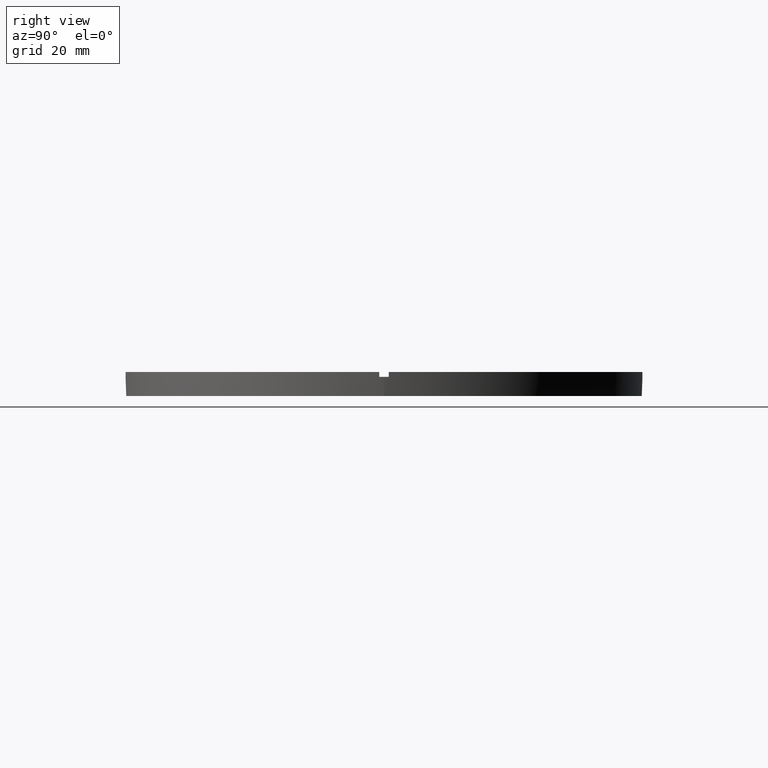
[diagram: clean part render]
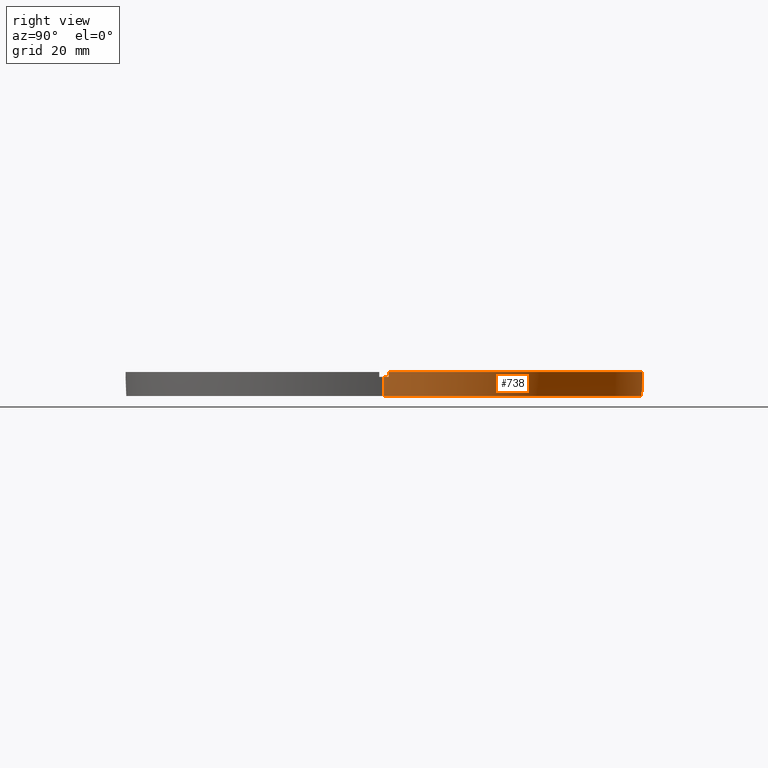
[diagram: same view with one face highlighted and labeled with its STEP entity id]
A machine part, right view. The second image highlights one B-rep face of the part: STEP entity #738.
In plain terms, the highlighted cylindrical surface (partial cylindrical patch) has radius 54 mm, axis along (-0, -0, -1).
Its self-contained STEP definition (entity closure, byte-faithful):
#6 = EDGE_CURVE ( 'NONE', #728, #217, #572, .T. ) ;
#8 = DIRECTION ( 'NONE',  ( 0.000000000000000000, -0.000000000000000000, 1.000000000000000000 ) ) ;
#10 = CARTESIAN_POINT ( 'NONE',  ( 53.99073994677235788, 0.9999999999998456790, 4.000000000000000000 ) ) ;
#14 = CARTESIAN_POINT ( 'NONE',  ( -1.000000000000027311, 53.99073994677235078, 5.000000000000000000 ) ) ;
#15 = CARTESIAN_POINT ( 'NONE',  ( 54.00000000000000000, 6.613092715395707467E-15, 4.000000000000000000 ) ) ;
#16 = EDGE_CURVE ( 'NONE', #146, #57, #47, .T. ) ;
#25 = EDGE_CURVE ( 'NONE', #301, #200, #280, .T. ) ;
#27 = VECTOR ( 'NONE', #434, 1000.000000000000000 ) ;
#39 = VECTOR ( 'NONE', #130, 1000.000000000000000 ) ;
#47 = CIRCLE ( 'NONE', #350, 54.00000000000000000 ) ;
#57 = VERTEX_POINT ( 'NONE', #207 ) ;
#58 = AXIS2_PLACEMENT_3D ( 'NONE', #514, #698, #463 ) ;
#62 = LINE ( 'NONE', #113, #555 ) ;
#73 = CIRCLE ( 'NONE', #58, 54.00000000000000000 ) ;
#77 = LINE ( 'NONE', #770, #609 ) ;
#90 = CIRCLE ( 'NONE', #712, 54.00000000000000000 ) ;
#91 = VECTOR ( 'NONE', #539, 1000.000000000000000 ) ;
#100 = FACE_OUTER_BOUND ( 'NONE', #547, .T. ) ;
#113 = CARTESIAN_POINT ( 'NONE',  ( 0.9999999999999726885, 53.99073994677235078, 5.000000000000000000 ) ) ;
#119 = ORIENTED_EDGE ( 'NONE', *, *, #550, .T. ) ;
#126 = ORIENTED_EDGE ( 'NONE', *, *, #25, .F. ) ;
#130 = DIRECTION ( 'NONE',  ( 0.000000000000000000, 0.000000000000000000, 1.000000000000000000 ) ) ;
#131 = EDGE_CURVE ( 'NONE', #152, #217, #559, .T. ) ;
#136 = CARTESIAN_POINT ( 'NONE',  ( 53.99073994677235788, 0.9999999999998456790, 5.000000000000000000 ) ) ;
#146 = VERTEX_POINT ( 'NONE', #771 ) ;
#152 = VERTEX_POINT ( 'NONE', #489 ) ;
#163 = AXIS2_PLACEMENT_3D ( 'NONE', #536, #173, #365 ) ;
#173 = DIRECTION ( 'NONE',  ( -0.000000000000000000, -0.000000000000000000, -1.000000000000000000 ) ) ;
#176 = ORIENTED_EDGE ( 'NONE', *, *, #231, .F. ) ;
#188 = VERTEX_POINT ( 'NONE', #521 ) ;
#189 = DIRECTION ( 'NONE',  ( 0.000000000000000000, 0.000000000000000000, 1.000000000000000000 ) ) ;
#191 = VERTEX_POINT ( 'NONE', #15 ) ;
#200 = VERTEX_POINT ( 'NONE', #479 ) ;
#205 = AXIS2_PLACEMENT_3D ( 'NONE', #499, #8, #682 ) ;
#207 = CARTESIAN_POINT ( 'NONE',  ( 0.9999999999999726885, 53.99073994677235078, 5.000000000000000000 ) ) ;
#217 = VERTEX_POINT ( 'NONE', #528 ) ;
#231 = EDGE_CURVE ( 'NONE', #188, #556, #552, .T. ) ;
#245 = EDGE_CURVE ( 'NONE', #301, #57, #62, .T. ) ;
#266 = DIRECTION ( 'NONE',  ( 0.000000000000000000, 0.000000000000000000, 1.000000000000000000 ) ) ;
#279 = CARTESIAN_POINT ( 'NONE',  ( -54.00000000000000000, 0.000000000000000000, 5.000000000000000000 ) ) ;
#280 = CIRCLE ( 'NONE', #205, 54.00000000000000000 ) ;
#290 = DIRECTION ( 'NONE',  ( 1.000000000000000000, 0.000000000000000000, 0.000000000000000000 ) ) ;
#301 = VERTEX_POINT ( 'NONE', #603 ) ;
#304 = EDGE_CURVE ( 'NONE', #191, #446, #623, .T. ) ;
#339 = LINE ( 'NONE', #136, #91 ) ;
#344 = CARTESIAN_POINT ( 'NONE',  ( -54.00000000000000000, 0.000000000000000000, 0.000000000000000000 ) ) ;
#349 = LINE ( 'NONE', #14, #635 ) ;
#350 = AXIS2_PLACEMENT_3D ( 'NONE', #542, #632, #290 ) ;
#353 = DIRECTION ( 'NONE',  ( -0.000000000000000000, -0.000000000000000000, -1.000000000000000000 ) ) ;
#359 = CYLINDRICAL_SURFACE ( 'NONE', #163, 54.00000000000000000 ) ;
#365 = DIRECTION ( 'NONE',  ( -1.000000000000000000, 0.000000000000000000, 0.000000000000000000 ) ) ;
#374 = DIRECTION ( 'NONE',  ( 1.000000000000000000, 0.000000000000000000, 0.000000000000000000 ) ) ;
#376 = CARTESIAN_POINT ( 'NONE',  ( 0.000000000000000000, 0.000000000000000000, 5.000000000000000000 ) ) ;
#381 = ORIENTED_EDGE ( 'NONE', *, *, #131, .T. ) ;
#398 = DIRECTION ( 'NONE',  ( -0.000000000000000000, -0.000000000000000000, -1.000000000000000000 ) ) ;
#412 = VERTEX_POINT ( 'NONE', #513 ) ;
#421 = DIRECTION ( 'NONE',  ( 1.000000000000000000, 0.000000000000000000, 0.000000000000000000 ) ) ;
#423 = CARTESIAN_POINT ( 'NONE',  ( 0.000000000000000000, 0.000000000000000000, 0.000000000000000000 ) ) ;
#430 = DIRECTION ( 'NONE',  ( 1.000000000000000000, 0.000000000000000000, 0.000000000000000000 ) ) ;
#434 = DIRECTION ( 'NONE',  ( -0.000000000000000000, -0.000000000000000000, -1.000000000000000000 ) ) ;
#435 = ORIENTED_EDGE ( 'NONE', *, *, #509, .T. ) ;
#442 = ORIENTED_EDGE ( 'NONE', *, *, #6, .F. ) ;
#446 = VERTEX_POINT ( 'NONE', #10 ) ;
#449 = ORIENTED_EDGE ( 'NONE', *, *, #663, .T. ) ;
#463 = DIRECTION ( 'NONE',  ( 1.000000000000000000, 0.000000000000000000, 0.000000000000000000 ) ) ;
#464 = ORIENTED_EDGE ( 'NONE', *, *, #245, .T. ) ;
#479 = CARTESIAN_POINT ( 'NONE',  ( -1.000000000000027311, 53.99073994677235078, 4.000000000000000000 ) ) ;
#481 = ORIENTED_EDGE ( 'NONE', *, *, #304, .F. ) ;
#489 = CARTESIAN_POINT ( 'NONE',  ( -53.99073994677235078, 0.9999999999999672484, 4.000000000000000000 ) ) ;
#499 = CARTESIAN_POINT ( 'NONE',  ( 0.000000000000000000, 0.000000000000000000, 4.000000000000000000 ) ) ;
#500 = CARTESIAN_POINT ( 'NONE',  ( -53.99073994677235078, 0.9999999999999672484, 5.000000000000000000 ) ) ;
#509 = EDGE_CURVE ( 'NONE', #728, #200, #349, .T. ) ;
#513 = CARTESIAN_POINT ( 'NONE',  ( 54.00000000000000000, 6.613092715395707467E-15, 0.000000000000000000 ) ) ;
#514 = CARTESIAN_POINT ( 'NONE',  ( 0.000000000000000000, 0.000000000000000000, 4.000000000000000000 ) ) ;
#521 = CARTESIAN_POINT ( 'NONE',  ( -54.00000000000000000, 0.000000000000000000, 4.000000000000000000 ) ) ;
#528 = CARTESIAN_POINT ( 'NONE',  ( -53.99073994677235078, 0.9999999999999672484, 5.000000000000000000 ) ) ;
#532 = EDGE_CURVE ( 'NONE', #152, #188, #73, .T. ) ;
#536 = CARTESIAN_POINT ( 'NONE',  ( 0.000000000000000000, 0.000000000000000000, 5.000000000000000000 ) ) ;
#539 = DIRECTION ( 'NONE',  ( -0.000000000000000000, -0.000000000000000000, -1.000000000000000000 ) ) ;
#542 = CARTESIAN_POINT ( 'NONE',  ( 0.000000000000000000, 0.000000000000000000, 5.000000000000000000 ) ) ;
#547 = EDGE_LOOP ( 'NONE', ( #481, #119, #449, #176, #650, #381, #442, #435, #126, #464, #648, #653 ) ) ;
#550 = EDGE_CURVE ( 'NONE', #191, #412, #77, .T. ) ;
#552 = LINE ( 'NONE', #279, #27 ) ;
#555 = VECTOR ( 'NONE', #671, 1000.000000000000000 ) ;
#556 = VERTEX_POINT ( 'NONE', #344 ) ;
#559 = LINE ( 'NONE', #500, #39 ) ;
#572 = CIRCLE ( 'NONE', #705, 54.00000000000000000 ) ;
#603 = CARTESIAN_POINT ( 'NONE',  ( 0.9999999999999726885, 53.99073994677235078, 4.000000000000000000 ) ) ;
#609 = VECTOR ( 'NONE', #398, 1000.000000000000000 ) ;
#623 = CIRCLE ( 'NONE', #758, 54.00000000000000000 ) ;
#632 = DIRECTION ( 'NONE',  ( 0.000000000000000000, 0.000000000000000000, 1.000000000000000000 ) ) ;
#635 = VECTOR ( 'NONE', #353, 1000.000000000000000 ) ;
#648 = ORIENTED_EDGE ( 'NONE', *, *, #16, .F. ) ;
#650 = ORIENTED_EDGE ( 'NONE', *, *, #532, .F. ) ;
#653 = ORIENTED_EDGE ( 'NONE', *, *, #668, .T. ) ;
#663 = EDGE_CURVE ( 'NONE', #412, #556, #90, .T. ) ;
#667 = CARTESIAN_POINT ( 'NONE',  ( 0.000000000000000000, 0.000000000000000000, 4.000000000000000000 ) ) ;
#668 = EDGE_CURVE ( 'NONE', #146, #446, #339, .T. ) ;
#671 = DIRECTION ( 'NONE',  ( 0.000000000000000000, 0.000000000000000000, 1.000000000000000000 ) ) ;
#682 = DIRECTION ( 'NONE',  ( 1.000000000000000000, 0.000000000000000000, 0.000000000000000000 ) ) ;
#698 = DIRECTION ( 'NONE',  ( 0.000000000000000000, 0.000000000000000000, 1.000000000000000000 ) ) ;
#705 = AXIS2_PLACEMENT_3D ( 'NONE', #376, #755, #430 ) ;
#712 = AXIS2_PLACEMENT_3D ( 'NONE', #423, #189, #374 ) ;
#728 = VERTEX_POINT ( 'NONE', #743 ) ;
#738 = ADVANCED_FACE ( 'NONE', ( #100 ), #359, .T. ) ;
#743 = CARTESIAN_POINT ( 'NONE',  ( -1.000000000000027311, 53.99073994677235078, 5.000000000000000000 ) ) ;
#755 = DIRECTION ( 'NONE',  ( 0.000000000000000000, 0.000000000000000000, 1.000000000000000000 ) ) ;
#758 = AXIS2_PLACEMENT_3D ( 'NONE', #667, #266, #421 ) ;
#770 = CARTESIAN_POINT ( 'NONE',  ( 54.00000000000000000, 6.613092715395707467E-15, 5.000000000000000000 ) ) ;
#771 = CARTESIAN_POINT ( 'NONE',  ( 53.99073994677235788, 0.9999999999998456790, 5.000000000000000000 ) ) ;